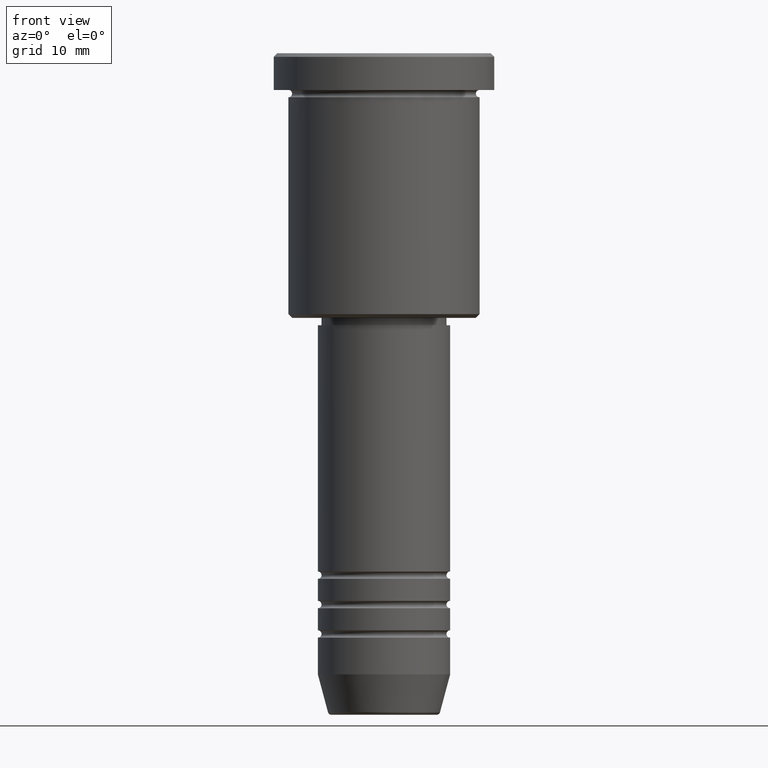
[diagram: clean part render]
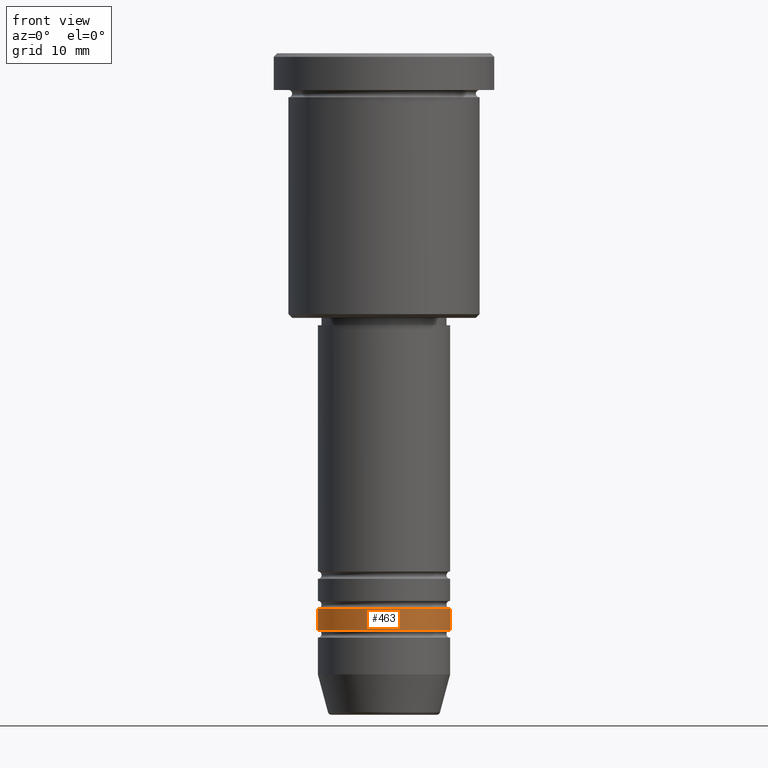
[diagram: same view with one face highlighted and labeled with its STEP entity id]
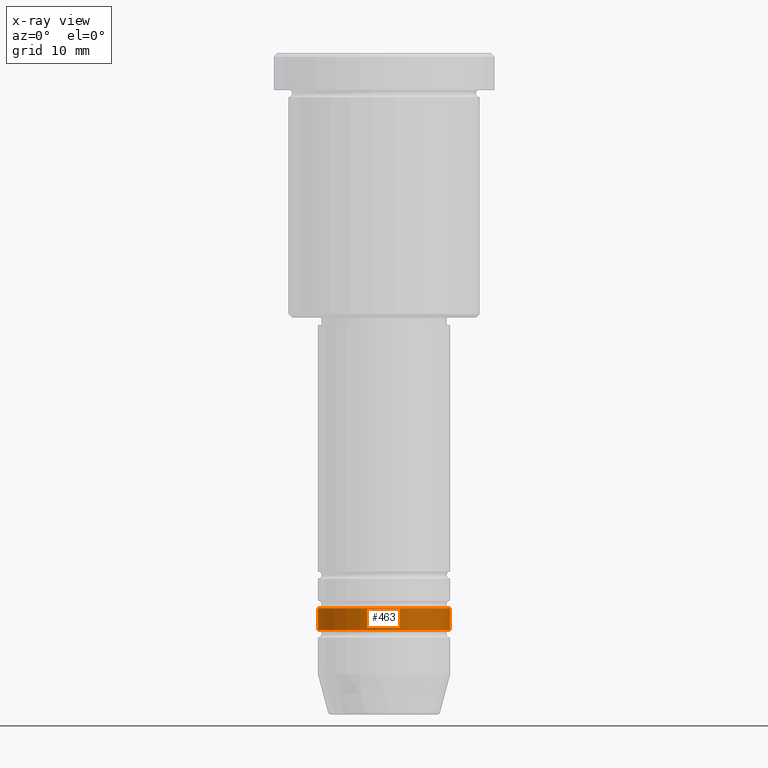
[diagram: x-ray of the same camera — body ghosted, the highlighted face saturated]
A machine part, front view. The second image highlights one B-rep face of the part: STEP entity #463.
The next image is the same camera in x-ray: the body ghosted, the highlighted face saturated — about 0% of this face is hidden behind the body in this view.
In plain terms, the highlighted cylindrical surface (partial cylindrical patch) has radius 9 mm, axis along (-0, -0, 1).
Its self-contained STEP definition (entity closure, byte-faithful):
#107 = CIRCLE ( 'NONE', #477, 9.000000000000001776 ) ;
#156 = ORIENTED_EDGE ( 'NONE', *, *, #610, .F. ) ;
#159 = CARTESIAN_POINT ( 'NONE',  ( 9.000000000000000000, 0.000000000000000000, -75.49999999999998579 ) ) ;
#166 = VERTEX_POINT ( 'NONE', #264 ) ;
#245 = ORIENTED_EDGE ( 'NONE', *, *, #1038, .F. ) ;
#264 = CARTESIAN_POINT ( 'NONE',  ( -9.000000000000000000, 1.102182119232617714E-15, -75.49999999999998579 ) ) ;
#274 = CARTESIAN_POINT ( 'NONE',  ( -9.000000000000001776, 1.102182119232617911E-15, 0.000000000000000000 ) ) ;
#275 = DIRECTION ( 'NONE',  ( 1.000000000000000000, 0.000000000000000000, 0.000000000000000000 ) ) ;
#286 = DIRECTION ( 'NONE',  ( -0.000000000000000000, -0.000000000000000000, 1.000000000000000000 ) ) ;
#307 = CARTESIAN_POINT ( 'NONE',  ( -9.000000000000001776, 1.102182119232617911E-15, -78.49999999999997158 ) ) ;
#322 = DIRECTION ( 'NONE',  ( 1.000000000000000000, 0.000000000000000000, 0.000000000000000000 ) ) ;
#336 = EDGE_CURVE ( 'NONE', #789, #356, #107, .T. ) ;
#356 = VERTEX_POINT ( 'NONE', #482 ) ;
#381 = CARTESIAN_POINT ( 'NONE',  ( 9.000000000000001776, 0.000000000000000000, 0.000000000000000000 ) ) ;
#408 = CIRCLE ( 'NONE', #1063, 9.000000000000000000 ) ;
#414 = VERTEX_POINT ( 'NONE', #159 ) ;
#463 = ADVANCED_FACE ( 'NONE', ( #968 ), #1152, .T. ) ;
#464 = LINE ( 'NONE', #381, #714 ) ;
#477 = AXIS2_PLACEMENT_3D ( 'NONE', #1049, #657, #322 ) ;
#482 = CARTESIAN_POINT ( 'NONE',  ( 9.000000000000001776, 0.000000000000000000, -78.49999999999997158 ) ) ;
#537 = CARTESIAN_POINT ( 'NONE',  ( 0.000000000000000000, 0.000000000000000000, 0.000000000000000000 ) ) ;
#550 = DIRECTION ( 'NONE',  ( -0.000000000000000000, -0.000000000000000000, 1.000000000000000000 ) ) ;
#592 = AXIS2_PLACEMENT_3D ( 'NONE', #537, #888, #873 ) ;
#610 = EDGE_CURVE ( 'NONE', #166, #414, #408, .T. ) ;
#657 = DIRECTION ( 'NONE',  ( -0.000000000000000000, -0.000000000000000000, 1.000000000000000000 ) ) ;
#708 = LINE ( 'NONE', #274, #841 ) ;
#714 = VECTOR ( 'NONE', #899, 1000.000000000000000 ) ;
#753 = EDGE_LOOP ( 'NONE', ( #245, #1083, #854, #156 ) ) ;
#789 = VERTEX_POINT ( 'NONE', #307 ) ;
#841 = VECTOR ( 'NONE', #550, 1000.000000000000000 ) ;
#854 = ORIENTED_EDGE ( 'NONE', *, *, #1099, .T. ) ;
#873 = DIRECTION ( 'NONE',  ( 1.000000000000000000, 0.000000000000000000, 0.000000000000000000 ) ) ;
#888 = DIRECTION ( 'NONE',  ( -0.000000000000000000, -0.000000000000000000, 1.000000000000000000 ) ) ;
#899 = DIRECTION ( 'NONE',  ( -0.000000000000000000, -0.000000000000000000, 1.000000000000000000 ) ) ;
#968 = FACE_OUTER_BOUND ( 'NONE', #753, .T. ) ;
#1010 = CARTESIAN_POINT ( 'NONE',  ( 0.000000000000000000, 0.000000000000000000, -75.49999999999998579 ) ) ;
#1038 = EDGE_CURVE ( 'NONE', #789, #166, #708, .T. ) ;
#1049 = CARTESIAN_POINT ( 'NONE',  ( 0.000000000000000000, 0.000000000000000000, -78.49999999999997158 ) ) ;
#1063 = AXIS2_PLACEMENT_3D ( 'NONE', #1010, #286, #275 ) ;
#1083 = ORIENTED_EDGE ( 'NONE', *, *, #336, .T. ) ;
#1099 = EDGE_CURVE ( 'NONE', #356, #414, #464, .T. ) ;
#1152 = CYLINDRICAL_SURFACE ( 'NONE', #592, 9.000000000000001776 ) ;